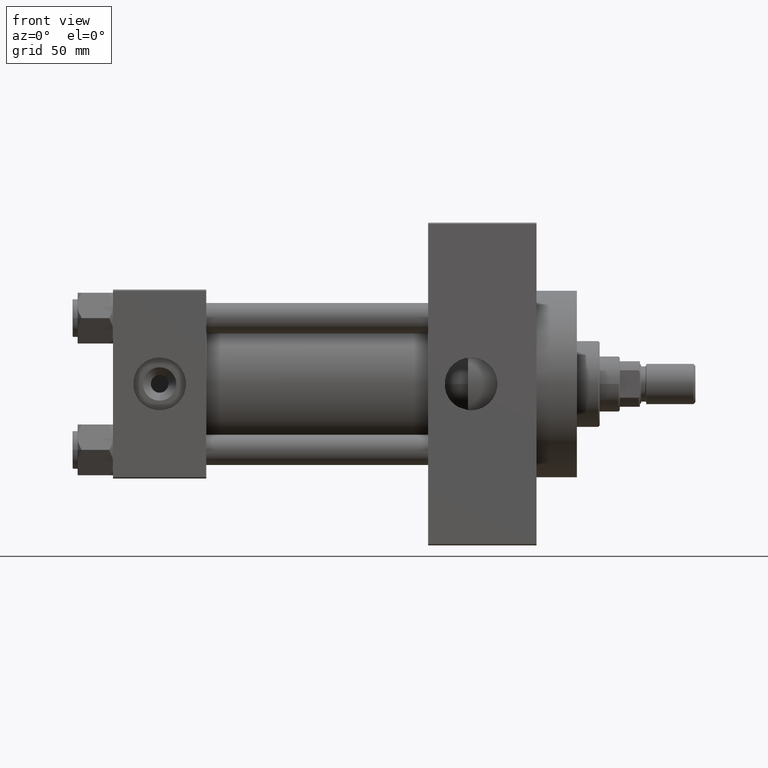
[diagram: clean part render]
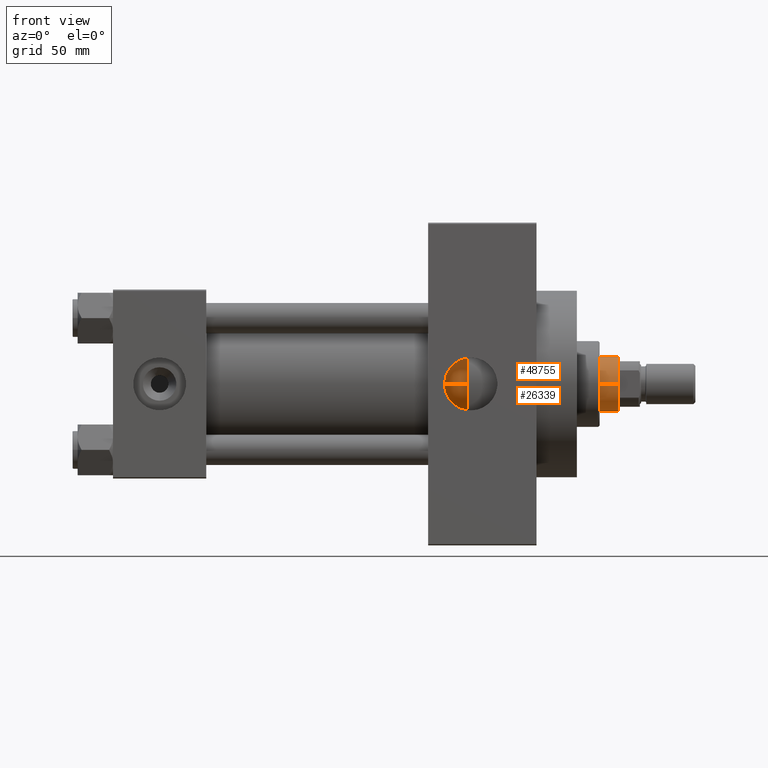
[diagram: same view with one multi-face feature highlighted, each face labeled with its STEP entity id]
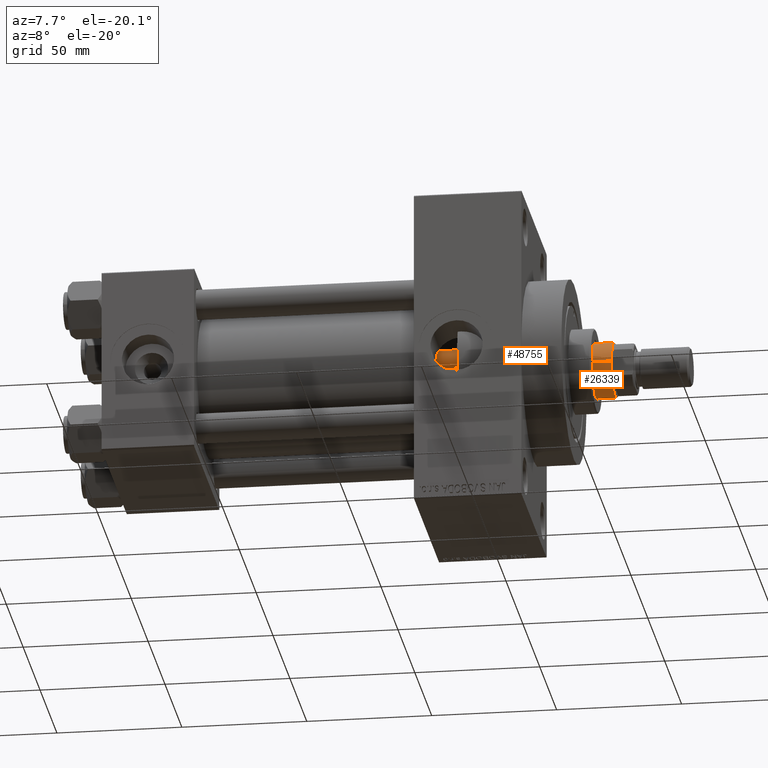
[diagram: same view with one multi-face feature highlighted, each face labeled with its STEP entity id]
A machine part, front view. The highlighted faces form ONE feature: a constant-radius fillet chain: 2 tangent blend faces with common blend radius 11 mm. The faces share edges in the B-rep.
A second angle (auxiliary view) of the same feature is appended — it is thin or edge-on in the first view.
Their STEP definitions:
[1] entity #26339 (Cylinder):
#2058 = AXIS2_PLACEMENT_3D ( 'NONE', #25049, #28841, #9642 ) ;
#3667 = ORIENTED_EDGE ( 'NONE', *, *, #30703, .T. ) ;
#5558 = EDGE_CURVE ( 'NONE', #32535, #35134, #48853, .T. ) ;
#5668 = DIRECTION ( 'NONE',  ( -0.000000000000000000, -0.000000000000000000, -1.000000000000000000 ) ) ;
#8927 = EDGE_CURVE ( 'NONE', #38806, #17900, #19915, .T. ) ;
#9642 = DIRECTION ( 'NONE',  ( 1.000000000000000000, 0.000000000000000000, 0.000000000000000000 ) ) ;
#9874 = EDGE_LOOP ( 'NONE', ( #43912, #3667, #16194, #36478 ) ) ;
#10744 = DIRECTION ( 'NONE',  ( -0.000000000000000000, -0.000000000000000000, -1.000000000000000000 ) ) ;
#11447 = LINE ( 'NONE', #31390, #31531 ) ;
#12899 = CARTESIAN_POINT ( 'NONE',  ( -11.00000000000000000, 0.000000000000000000, 38.00000000000000000 ) ) ;
#14537 = CYLINDRICAL_SURFACE ( 'NONE', #32183, 11.00000000000000000 ) ;
#14860 = DIRECTION ( 'NONE',  ( 0.000000000000000000, 0.000000000000000000, 1.000000000000000000 ) ) ;
#15486 = DIRECTION ( 'NONE',  ( -0.000000000000000000, -0.000000000000000000, -1.000000000000000000 ) ) ;
#16194 = ORIENTED_EDGE ( 'NONE', *, *, #8927, .T. ) ;
#17818 = VECTOR ( 'NONE', #5668, 1000.000000000000000 ) ;
#17900 = VERTEX_POINT ( 'NONE', #12899 ) ;
#19915 = CIRCLE ( 'NONE', #31186, 11.00000000000000000 ) ;
#22443 = CARTESIAN_POINT ( 'NONE',  ( 0.000000000000000000, 0.000000000000000000, 38.00000000000000000 ) ) ;
#24622 = LINE ( 'NONE', #35988, #17818 ) ;
#25049 = CARTESIAN_POINT ( 'NONE',  ( 0.000000000000000000, 0.000000000000000000, 163.5000000000000284 ) ) ;
#26339 = ADVANCED_FACE ( 'NONE', ( #49656 ), #14537, .T. ) ;
#28841 = DIRECTION ( 'NONE',  ( 0.000000000000000000, 0.000000000000000000, -1.000000000000000000 ) ) ;
#29605 = EDGE_CURVE ( 'NONE', #32535, #17900, #24622, .T. ) ;
#30703 = EDGE_CURVE ( 'NONE', #35134, #38806, #11447, .T. ) ;
#31186 = AXIS2_PLACEMENT_3D ( 'NONE', #22443, #14860, #48498 ) ;
#31390 = CARTESIAN_POINT ( 'NONE',  ( 11.00000000000000000, 1.347111479062088405E-15, 164.0000000000000000 ) ) ;
#31531 = VECTOR ( 'NONE', #15486, 1000.000000000000000 ) ;
#32183 = AXIS2_PLACEMENT_3D ( 'NONE', #38025, #10744, #38527 ) ;
#32535 = VERTEX_POINT ( 'NONE', #43378 ) ;
#32986 = CARTESIAN_POINT ( 'NONE',  ( 11.00000000000000000, 1.347111479062088405E-15, 38.00000000000000000 ) ) ;
#35134 = VERTEX_POINT ( 'NONE', #38634 ) ;
#35988 = CARTESIAN_POINT ( 'NONE',  ( -11.00000000000000000, 0.000000000000000000, 164.0000000000000000 ) ) ;
#36478 = ORIENTED_EDGE ( 'NONE', *, *, #29605, .F. ) ;
#38025 = CARTESIAN_POINT ( 'NONE',  ( 0.000000000000000000, 0.000000000000000000, 164.0000000000000000 ) ) ;
#38527 = DIRECTION ( 'NONE',  ( -1.000000000000000000, 0.000000000000000000, 0.000000000000000000 ) ) ;
#38634 = CARTESIAN_POINT ( 'NONE',  ( 11.00000000000000000, 1.347111479062088405E-15, 163.5000000000000284 ) ) ;
#38806 = VERTEX_POINT ( 'NONE', #32986 ) ;
#43378 = CARTESIAN_POINT ( 'NONE',  ( -11.00000000000000000, 0.000000000000000000, 163.5000000000000284 ) ) ;
#43912 = ORIENTED_EDGE ( 'NONE', *, *, #5558, .T. ) ;
#48498 = DIRECTION ( 'NONE',  ( 1.000000000000000000, 0.000000000000000000, 0.000000000000000000 ) ) ;
#48853 = CIRCLE ( 'NONE', #2058, 11.00000000000000000 ) ;
#49656 = FACE_OUTER_BOUND ( 'NONE', #9874, .T. ) ;
[2] entity #48755 (Cylinder):
#1012 = DIRECTION ( 'NONE',  ( -0.000000000000000000, -0.000000000000000000, -1.000000000000000000 ) ) ;
#1264 = FACE_OUTER_BOUND ( 'NONE', #44352, .T. ) ;
#5542 = DIRECTION ( 'NONE',  ( -1.000000000000000000, 0.000000000000000000, 0.000000000000000000 ) ) ;
#5668 = DIRECTION ( 'NONE',  ( -0.000000000000000000, -0.000000000000000000, -1.000000000000000000 ) ) ;
#7553 = ORIENTED_EDGE ( 'NONE', *, *, #30703, .F. ) ;
#7814 = AXIS2_PLACEMENT_3D ( 'NONE', #45469, #41674, #11332 ) ;
#11332 = DIRECTION ( 'NONE',  ( 1.000000000000000000, 0.000000000000000000, 0.000000000000000000 ) ) ;
#11447 = LINE ( 'NONE', #31390, #31531 ) ;
#12899 = CARTESIAN_POINT ( 'NONE',  ( -11.00000000000000000, 0.000000000000000000, 38.00000000000000000 ) ) ;
#15486 = DIRECTION ( 'NONE',  ( -0.000000000000000000, -0.000000000000000000, -1.000000000000000000 ) ) ;
#16149 = CARTESIAN_POINT ( 'NONE',  ( 0.000000000000000000, 0.000000000000000000, 164.0000000000000000 ) ) ;
#17818 = VECTOR ( 'NONE', #5668, 1000.000000000000000 ) ;
#17900 = VERTEX_POINT ( 'NONE', #12899 ) ;
#18281 = EDGE_CURVE ( 'NONE', #17900, #38806, #23151, .T. ) ;
#19740 = CARTESIAN_POINT ( 'NONE',  ( 0.000000000000000000, 0.000000000000000000, 163.5000000000000284 ) ) ;
#22063 = AXIS2_PLACEMENT_3D ( 'NONE', #16149, #1012, #5542 ) ;
#23151 = CIRCLE ( 'NONE', #7814, 11.00000000000000000 ) ;
#24441 = EDGE_CURVE ( 'NONE', #35134, #32535, #27406, .T. ) ;
#24622 = LINE ( 'NONE', #35988, #17818 ) ;
#27406 = CIRCLE ( 'NONE', #37897, 11.00000000000000000 ) ;
#29472 = ORIENTED_EDGE ( 'NONE', *, *, #24441, .T. ) ;
#29605 = EDGE_CURVE ( 'NONE', #32535, #17900, #24622, .T. ) ;
#30703 = EDGE_CURVE ( 'NONE', #35134, #38806, #11447, .T. ) ;
#31390 = CARTESIAN_POINT ( 'NONE',  ( 11.00000000000000000, 1.347111479062088405E-15, 164.0000000000000000 ) ) ;
#31531 = VECTOR ( 'NONE', #15486, 1000.000000000000000 ) ;
#31611 = DIRECTION ( 'NONE',  ( 0.000000000000000000, 0.000000000000000000, -1.000000000000000000 ) ) ;
#31959 = ORIENTED_EDGE ( 'NONE', *, *, #29605, .T. ) ;
#32535 = VERTEX_POINT ( 'NONE', #43378 ) ;
#32986 = CARTESIAN_POINT ( 'NONE',  ( 11.00000000000000000, 1.347111479062088405E-15, 38.00000000000000000 ) ) ;
#35134 = VERTEX_POINT ( 'NONE', #38634 ) ;
#35988 = CARTESIAN_POINT ( 'NONE',  ( -11.00000000000000000, 0.000000000000000000, 164.0000000000000000 ) ) ;
#37897 = AXIS2_PLACEMENT_3D ( 'NONE', #19740, #31611, #43755 ) ;
#38634 = CARTESIAN_POINT ( 'NONE',  ( 11.00000000000000000, 1.347111479062088405E-15, 163.5000000000000284 ) ) ;
#38806 = VERTEX_POINT ( 'NONE', #32986 ) ;
#39270 = ORIENTED_EDGE ( 'NONE', *, *, #18281, .T. ) ;
#41674 = DIRECTION ( 'NONE',  ( 0.000000000000000000, 0.000000000000000000, 1.000000000000000000 ) ) ;
#43378 = CARTESIAN_POINT ( 'NONE',  ( -11.00000000000000000, 0.000000000000000000, 163.5000000000000284 ) ) ;
#43755 = DIRECTION ( 'NONE',  ( 1.000000000000000000, 0.000000000000000000, 0.000000000000000000 ) ) ;
#43950 = CYLINDRICAL_SURFACE ( 'NONE', #22063, 11.00000000000000000 ) ;
#44352 = EDGE_LOOP ( 'NONE', ( #7553, #29472, #31959, #39270 ) ) ;
#45469 = CARTESIAN_POINT ( 'NONE',  ( 0.000000000000000000, 0.000000000000000000, 38.00000000000000000 ) ) ;
#48755 = ADVANCED_FACE ( 'NONE', ( #1264 ), #43950, .T. ) ;